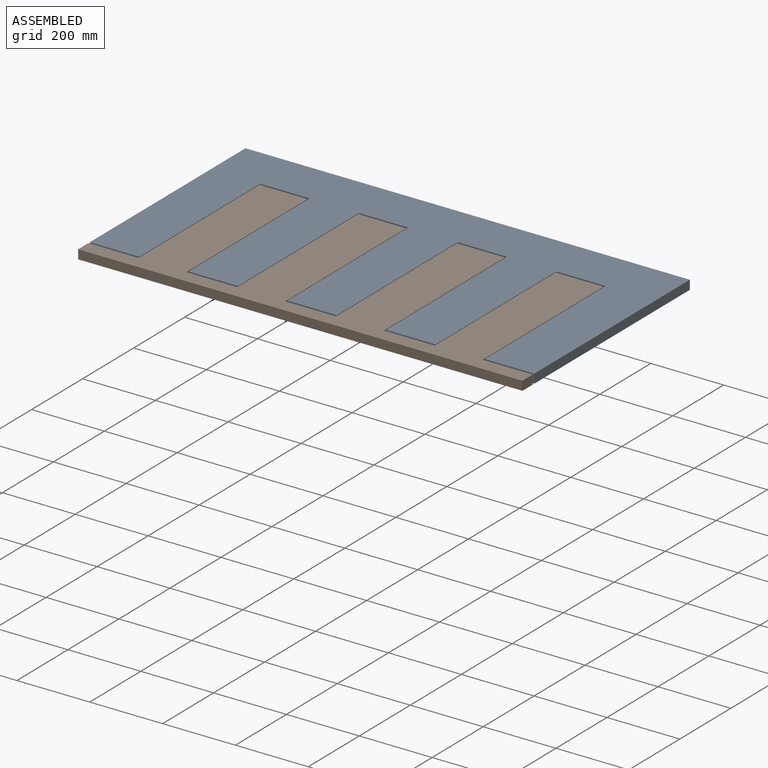
[diagram: assembled view]
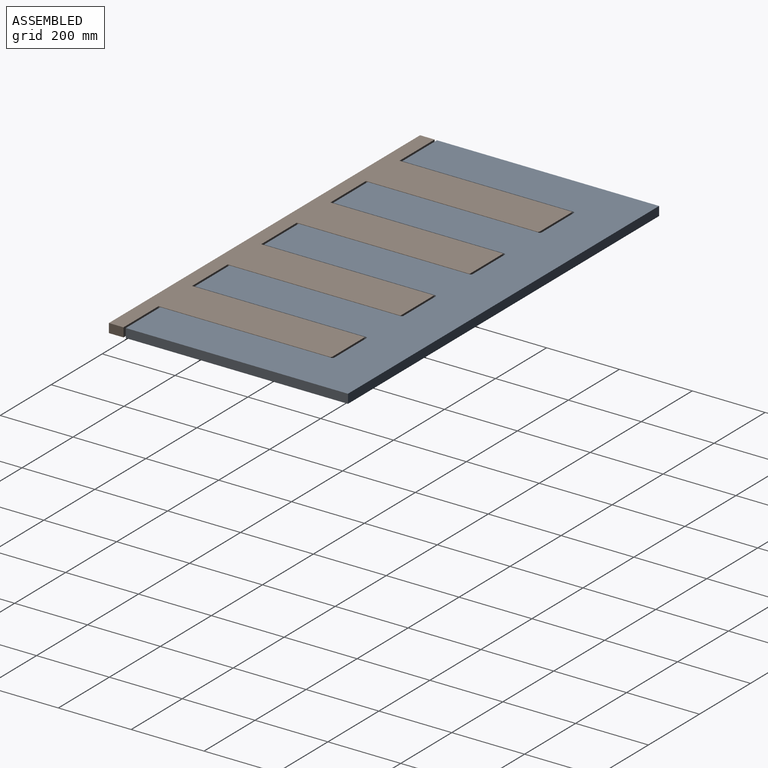
[diagram: assembled view, second angle]
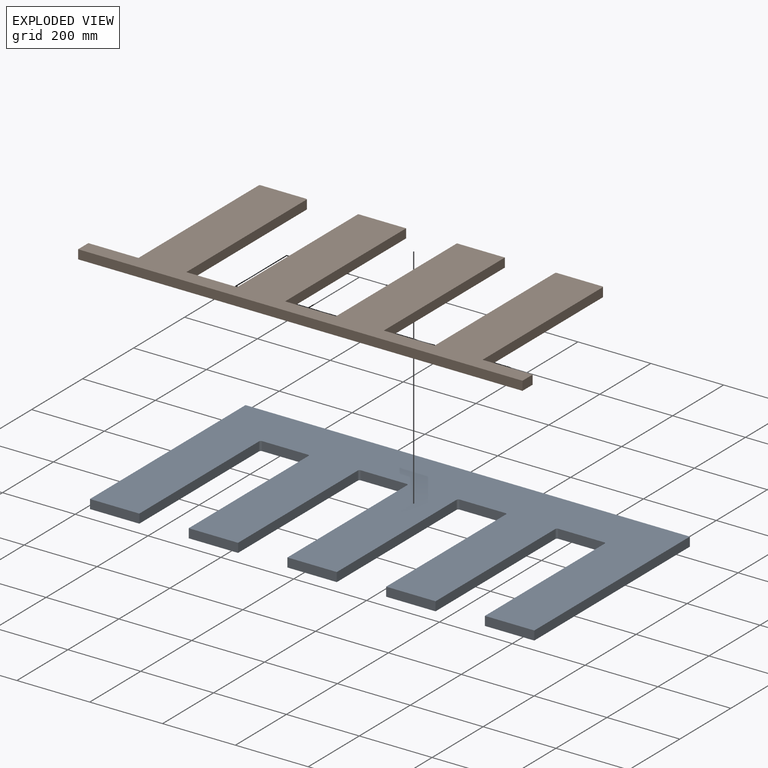
[diagram: exploded view]
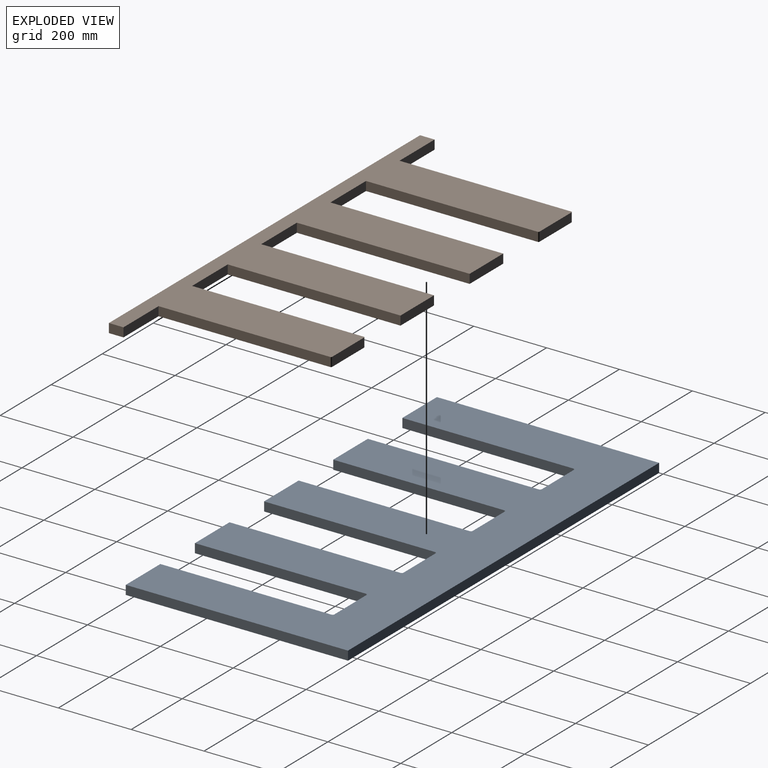
[diagram: exploded view, second angle]
ASSEMBLY  parts=2 mates=2
PART A: 30 faces, bbox 1220x610x25 mm
  f0: cylinder r=5mm len=25mm, axis (0,0,-1), area 196.3mm2, adj f1,f14,f15,f16
  f1: plane 125.56x25mm, normal (0,-1,0), area 3138.9mm2, adj f0,f2,f15,f16
  f2: cylinder r=5mm len=25mm, axis (0,0,-1), area 196.3mm2, adj f1,f3,f15,f16
  f3: plane 469.44x25mm, normal (-1,0,0), area 11736.1mm2, adj f2,f4,f15,f16
  f4: plane 135.56x25mm, normal (0,-1,0), area 3388.9mm2, adj f3,f15,f16,f20
  f5: plane 1220x25mm, normal (0,1,0), area 30500mm2, adj f6,f15,f16,f21
  f6: plane 610x25mm, normal (-1,0,0), area 15250mm2, adj f5,f7,f15,f16
  f7: plane 135.56x25mm, normal (0,-1,0), area 3388.9mm2, adj f6,f8,f15,f16
  f8: plane 469.44x25mm, normal (1,0,0), area 11736.1mm2, adj f7,f9,f15,f16
  f9: cylinder r=5mm len=25mm, axis (0,0,-1), area 196.3mm2, adj f8,f10,f15,f16
  f10: plane 125.56x25mm, normal (0,-1,0), area 3138.9mm2, adj f9,f11,f15,f16
  f11: cylinder r=5mm len=25mm, axis (0,0,-1), area 196.3mm2, adj f10,f12,f15,f16
  f12: plane 469.44x25mm, normal (-1,0,0), area 11736.1mm2, adj f11,f13,f15,f16
  f13: plane 135.56x25mm, normal (0,-1,0), area 3388.9mm2, adj f12,f14,f15,f16
  f14: plane 469.44x25mm, normal (1,0,0), area 11736.1mm2, adj f0,f13,f15,f16
  f15: plane 1220x610mm, normal (0,0,1), area 486988.6mm2, adj f0,f1,f2,f3,f4,f5,f6,f7
  f16: plane 1220x610mm, normal (0,0,-1), area 486988.6mm2, adj f0,f1,f2,f3,f4,f5,f6,f7
  f17: cylinder r=5mm len=25mm, axis (0,0,-1), area 196.3mm2, adj f15,f16,f18,f29
  f18: plane 125.56x25mm, normal (0,-1,0), area 3138.9mm2, adj f15,f16,f17,f19
  f19: cylinder r=5mm len=25mm, axis (0,0,-1), area 196.3mm2, adj f15,f16,f18,f20
  f20: plane 469.44x25mm, normal (1,0,0), area 11736.1mm2, adj f4,f15,f16,f19
  f21: plane 610x25mm, normal (1,0,0), area 15250mm2, adj f5,f15,f16,f22
  f22: plane 135.56x25mm, normal (0,-1,0), area 3388.9mm2, adj f15,f16,f21,f23
  f23: plane 469.44x25mm, normal (-1,0,0), area 11736.1mm2, adj f15,f16,f22,f24
  f24: cylinder r=5mm len=25mm, axis (0,0,-1), area 196.3mm2, adj f15,f16,f23,f25
  f25: plane 125.56x25mm, normal (0,-1,0), area 3138.9mm2, adj f15,f16,f24,f26
  f26: cylinder r=5mm len=25mm, axis (0,0,-1), area 196.3mm2, adj f15,f16,f25,f27
  f27: plane 469.44x25mm, normal (1,0,0), area 11736.1mm2, adj f15,f16,f26,f28
  f28: plane 135.56x25mm, normal (0,-1,0), area 3388.9mm2, adj f15,f16,f27,f29
  f29: plane 469.44x25mm, normal (-1,0,0), area 11736.1mm2, adj f15,f16,f17,f28
PART B: 26 faces, bbox 1220x514.4x25 mm
  f0: plane 1220x514.44mm, normal (0,0,1), area 298455.5mm2, adj f1,f2,f3,f4,f5,f6,f7,f8
  f1: cylinder r=3mm len=25mm, axis (0,0,-1), area 117.8mm2, adj f0,f2,f11,f13
  f2: plane 125.56x25mm, normal (0,1,0), area 3138.9mm2, adj f0,f1,f3,f11
  f3: cylinder r=3mm len=25mm, axis (0,0,-1), area 117.8mm2, adj f0,f2,f4,f11
  f4: plane 471.44x25mm, normal (-1,0,0), area 11786.1mm2, adj f0,f3,f5,f11
  f5: plane 137.56x25mm, normal (0,1,0), area 3438.9mm2, adj f0,f4,f6,f11
  f6: plane 40x25mm, normal (-1,0,0), area 1000mm2, adj f0,f5,f7,f11
  f7: plane 1220x25mm, normal (0,-1,0), area 30500mm2, adj f0,f6,f11,f20
  f8: plane 139.56x25mm, normal (0,1,0), area 3488.9mm2, adj f0,f9,f11,f21
  f9: plane 474.44x25mm, normal (1,0,0), area 11861.1mm2, adj f0,f8,f10,f11
  f10: plane 131.56x25mm, normal (0,1,0), area 3288.9mm2, adj f0,f9,f11,f12
  f11: plane 1220x514.44mm, normal (0,0,-1), area 298455.5mm2, adj f1,f2,f3,f4,f5,f6,f7,f8
  f12: plane 474.44x25mm, normal (-1,0,0), area 11861.1mm2, adj f0,f10,f11,f14
  f13: plane 471.44x25mm, normal (1,0,0), area 11786.1mm2, adj f0,f1,f11,f14
  f14: plane 139.56x25mm, normal (0,1,0), area 3488.9mm2, adj f0,f11,f12,f13
  f15: cylinder r=3mm len=25mm, axis (0,0,-1), area 117.8mm2, adj f0,f11,f16,f24
  f16: plane 125.56x25mm, normal (0,1,0), area 3138.9mm2, adj f0,f11,f15,f17
  f17: cylinder r=3mm len=25mm, axis (0,0,-1), area 117.8mm2, adj f0,f11,f16,f18
  f18: plane 471.44x25mm, normal (1,0,0), area 11786.1mm2, adj f0,f11,f17,f19
  f19: plane 137.56x25mm, normal (0,1,0), area 3438.9mm2, adj f0,f11,f18,f20
  f20: plane 40x25mm, normal (1,0,0), area 1000mm2, adj f0,f7,f11,f19
  f21: plane 474.44x25mm, normal (-1,0,0), area 11861.1mm2, adj f0,f8,f11,f22
  f22: plane 131.56x25mm, normal (0,1,0), area 3288.9mm2, adj f0,f11,f21,f23
  f23: plane 474.44x25mm, normal (1,0,0), area 11861.1mm2, adj f0,f11,f22,f25
  f24: plane 471.44x25mm, normal (-1,0,0), area 11786.1mm2, adj f0,f11,f15,f25
  f25: plane 139.56x25mm, normal (0,1,0), area 3488.9mm2, adj f0,f11,f23,f24
PLACE A t=(-153.02,110.04,88.3)mm fixed
PLACE B t=(-153.02,105.71,88.3)mm
MATE planar B.f0 <-> A.f15  axis (0,0,1) through (-493.9,34.43,113.3)mm
MATE planar B.f20 <-> A.f21  axis (1,0,0) through (456.98,-221.29,113.3)mm
